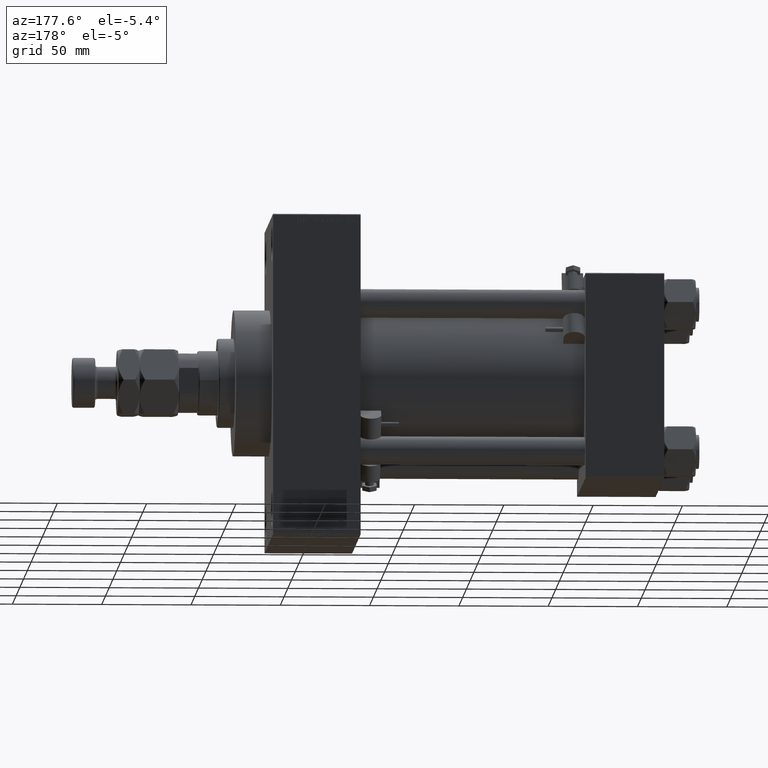
[diagram: clean part render]
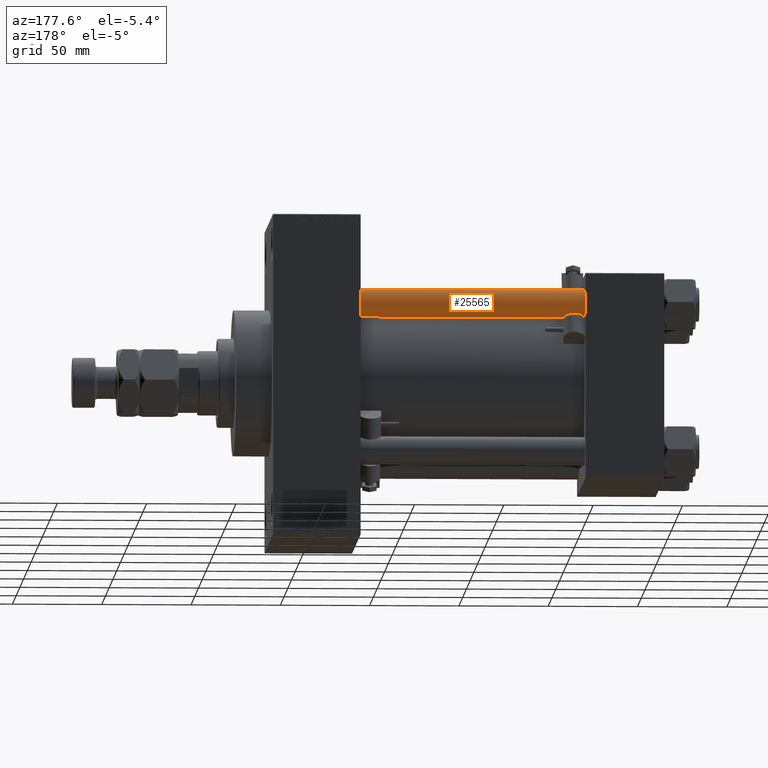
[diagram: same view with one face highlighted and labeled with its STEP entity id]
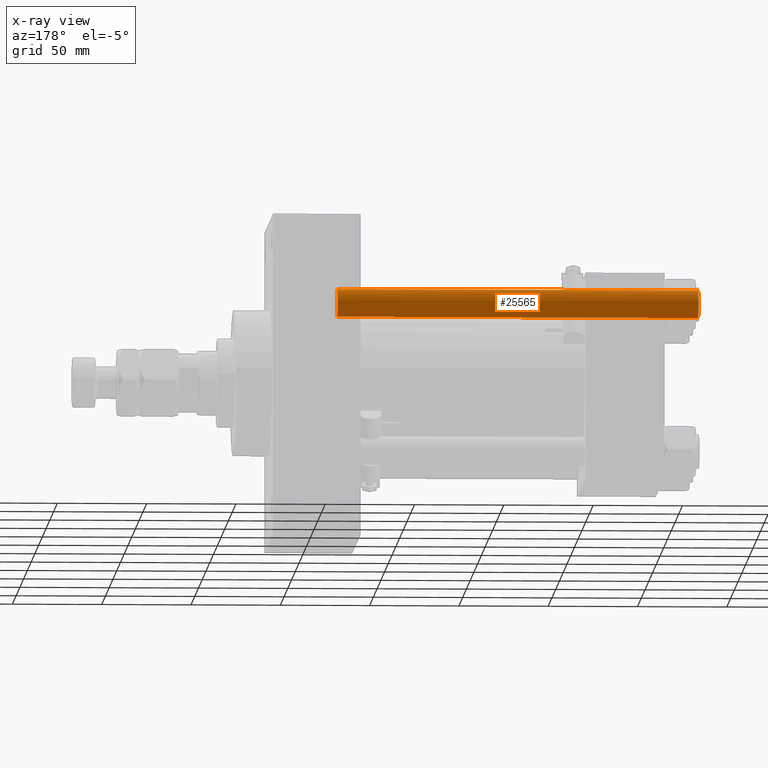
[diagram: x-ray of the same camera — body ghosted, the highlighted face saturated]
A machine part, auxiliary view. The second image highlights one B-rep face of the part: STEP entity #25565.
The next image is the same camera in x-ray: the body ghosted, the highlighted face saturated — about 0% of this face is hidden behind the body in this view.
In plain terms, the highlighted cylindrical surface (edge-blend (fillet) strip) has radius 8 mm, axis along (-1, -0, 0).
Its self-contained STEP definition (entity closure, byte-faithful):
#1011 = AXIS2_PLACEMENT_3D ( 'NONE', #30761, #46339, #23604 ) ;
#2162 = DIRECTION ( 'NONE',  ( 1.000000000000000000, 0.000000000000000000, 0.000000000000000000 ) ) ;
#2276 = EDGE_CURVE ( 'NONE', #34402, #42927, #31506, .T. ) ;
#3154 = DIRECTION ( 'NONE',  ( -0.000000000000000000, -0.000000000000000000, -1.000000000000000000 ) ) ;
#3321 = EDGE_CURVE ( 'NONE', #45607, #34402, #21194, .T. ) ;
#6092 = VECTOR ( 'NONE', #3154, 1000.000000000000000 ) ;
#6240 = CARTESIAN_POINT ( 'NONE',  ( -8.000000000000000000, 0.000000000000000000, 203.0000000000000000 ) ) ;
#12082 = ORIENTED_EDGE ( 'NONE', *, *, #26187, .T. ) ;
#13823 = VECTOR ( 'NONE', #17652, 1000.000000000000000 ) ;
#14436 = ORIENTED_EDGE ( 'NONE', *, *, #34552, .F. ) ;
#15199 = CYLINDRICAL_SURFACE ( 'NONE', #1011, 8.000000000000000000 ) ;
#16455 = CARTESIAN_POINT ( 'NONE',  ( -8.000000000000000000, 0.000000000000000000, 0.5000000000001947331 ) ) ;
#17404 = CARTESIAN_POINT ( 'NONE',  ( 8.000000000000000000, 9.797174393178823685E-16, 203.0000000000000000 ) ) ;
#17652 = DIRECTION ( 'NONE',  ( -0.000000000000000000, -0.000000000000000000, -1.000000000000000000 ) ) ;
#18533 = DIRECTION ( 'NONE',  ( -0.000000000000000000, -0.000000000000000000, 1.000000000000000000 ) ) ;
#18917 = CIRCLE ( 'NONE', #20575, 8.000000000000000000 ) ;
#20575 = AXIS2_PLACEMENT_3D ( 'NONE', #21863, #18533, #41508 ) ;
#21194 = CIRCLE ( 'NONE', #30938, 8.000000000000000000 ) ;
#21863 = CARTESIAN_POINT ( 'NONE',  ( 0.000000000000000000, 0.000000000000000000, 0.5000000000001947331 ) ) ;
#23106 = FACE_OUTER_BOUND ( 'NONE', #37854, .T. ) ;
#23188 = ORIENTED_EDGE ( 'NONE', *, *, #3321, .T. ) ;
#23604 = DIRECTION ( 'NONE',  ( -1.000000000000000000, 0.000000000000000000, 0.000000000000000000 ) ) ;
#25565 = ADVANCED_FACE ( 'NONE', ( #23106 ), #15199, .T. ) ;
#26187 = EDGE_CURVE ( 'NONE', #42927, #48534, #18917, .T. ) ;
#27333 = ORIENTED_EDGE ( 'NONE', *, *, #2276, .T. ) ;
#27443 = CARTESIAN_POINT ( 'NONE',  ( 8.000000000000000000, 9.797174393178823685E-16, 202.5000000000000853 ) ) ;
#30345 = CARTESIAN_POINT ( 'NONE',  ( -8.000000000000000000, 0.000000000000000000, 202.5000000000000853 ) ) ;
#30761 = CARTESIAN_POINT ( 'NONE',  ( 0.000000000000000000, 0.000000000000000000, 203.0000000000000000 ) ) ;
#30938 = AXIS2_PLACEMENT_3D ( 'NONE', #40692, #32786, #2162 ) ;
#31506 = LINE ( 'NONE', #17404, #13823 ) ;
#32786 = DIRECTION ( 'NONE',  ( 0.000000000000000000, 0.000000000000000000, -1.000000000000000000 ) ) ;
#34402 = VERTEX_POINT ( 'NONE', #27443 ) ;
#34552 = EDGE_CURVE ( 'NONE', #45607, #48534, #46284, .T. ) ;
#37854 = EDGE_LOOP ( 'NONE', ( #23188, #27333, #12082, #14436 ) ) ;
#40692 = CARTESIAN_POINT ( 'NONE',  ( 0.000000000000000000, 0.000000000000000000, 202.5000000000000853 ) ) ;
#41508 = DIRECTION ( 'NONE',  ( 1.000000000000000000, 0.000000000000000000, 0.000000000000000000 ) ) ;
#42927 = VERTEX_POINT ( 'NONE', #49648 ) ;
#45607 = VERTEX_POINT ( 'NONE', #30345 ) ;
#46284 = LINE ( 'NONE', #6240, #6092 ) ;
#46339 = DIRECTION ( 'NONE',  ( -0.000000000000000000, -0.000000000000000000, -1.000000000000000000 ) ) ;
#48534 = VERTEX_POINT ( 'NONE', #16455 ) ;
#49648 = CARTESIAN_POINT ( 'NONE',  ( 8.000000000000000000, 9.797174393178823685E-16, 0.5000000000001947331 ) ) ;